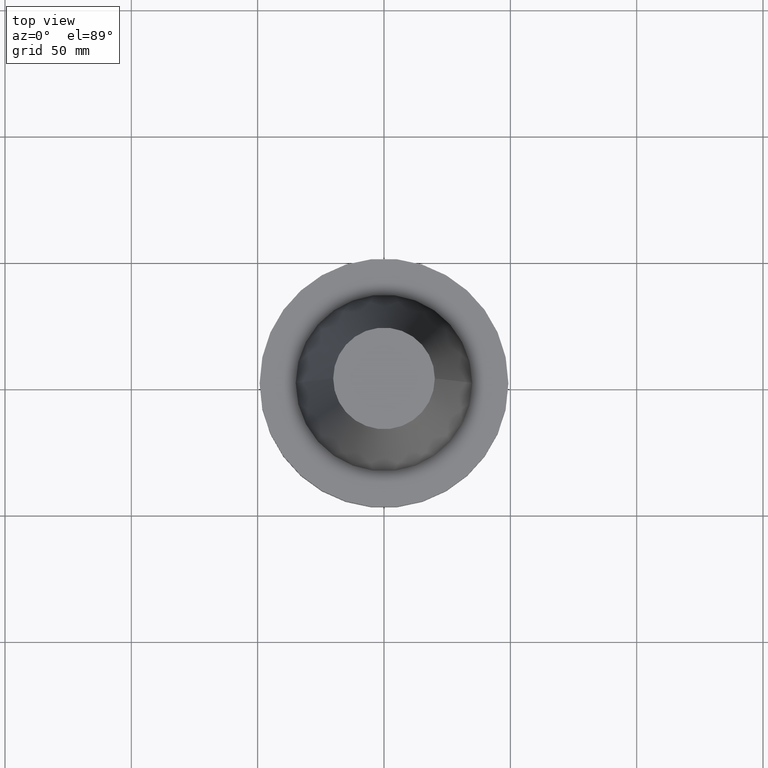
[diagram: clean part render]
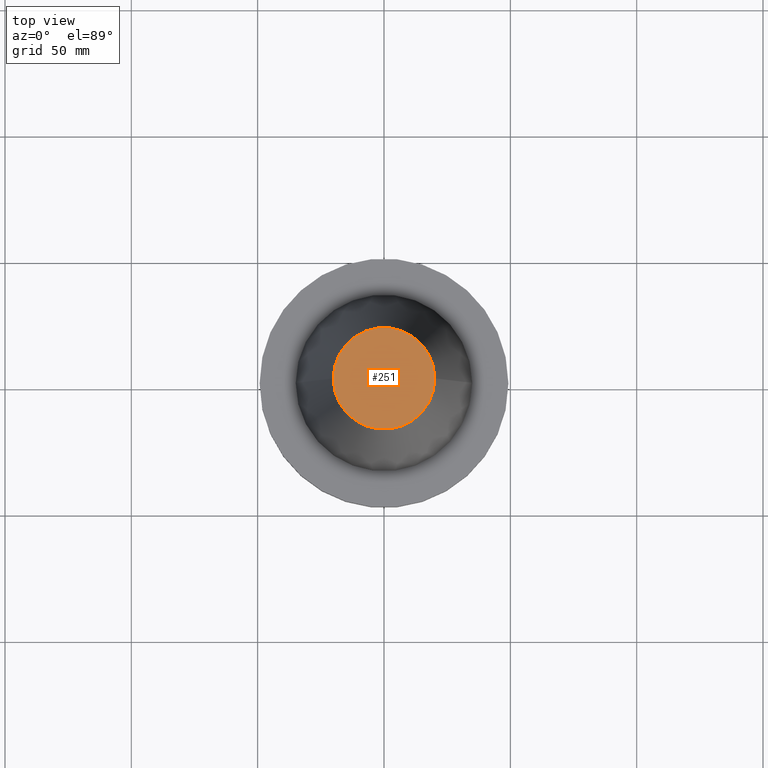
[diagram: same view with one face highlighted and labeled with its STEP entity id]
A machine part, top view. The second image highlights one B-rep face of the part: STEP entity #251.
In plain terms, the highlighted planar face has unit normal (0, 0, -1).
Its self-contained STEP definition (entity closure, byte-faithful):
#61 = CARTESIAN_POINT ( 'NONE',  ( 0.000000000000000000, 0.000000000000000000, 101.5999999999999801 ) ) ;
#99 = AXIS2_PLACEMENT_3D ( 'NONE', #573, #512, #697 ) ;
#149 = AXIS2_PLACEMENT_3D ( 'NONE', #61, #255, #517 ) ;
#160 = EDGE_LOOP ( 'NONE', ( #629, #319 ) ) ;
#251 = ADVANCED_FACE ( 'NONE', ( #780 ), #404, .F. ) ;
#255 = DIRECTION ( 'NONE',  ( -0.000000000000000000, -0.000000000000000000, 1.000000000000000000 ) ) ;
#279 = AXIS2_PLACEMENT_3D ( 'NONE', #523, #663, #462 ) ;
#308 = CARTESIAN_POINT ( 'NONE',  ( -20.10819343178871321, 0.000000000000000000, 101.5999999999999801 ) ) ;
#319 = ORIENTED_EDGE ( 'NONE', *, *, #716, .T. ) ;
#343 = VERTEX_POINT ( 'NONE', #489 ) ;
#404 = PLANE ( 'NONE',  #279 ) ;
#444 = CIRCLE ( 'NONE', #149, 20.10819343178871321 ) ;
#462 = DIRECTION ( 'NONE',  ( -1.000000000000000000, 0.000000000000000000, -0.000000000000000000 ) ) ;
#489 = CARTESIAN_POINT ( 'NONE',  ( 20.10819343178871321, 3.369811209154858606E-15, 101.5999999999999801 ) ) ;
#512 = DIRECTION ( 'NONE',  ( -0.000000000000000000, -0.000000000000000000, 1.000000000000000000 ) ) ;
#517 = DIRECTION ( 'NONE',  ( 1.000000000000000000, 0.000000000000000000, 0.000000000000000000 ) ) ;
#523 = CARTESIAN_POINT ( 'NONE',  ( 0.000000000000000000, 20.10819343178871321, 101.5999999999999943 ) ) ;
#557 = VERTEX_POINT ( 'NONE', #308 ) ;
#565 = EDGE_CURVE ( 'NONE', #557, #343, #735, .T. ) ;
#573 = CARTESIAN_POINT ( 'NONE',  ( 0.000000000000000000, 0.000000000000000000, 101.5999999999999801 ) ) ;
#629 = ORIENTED_EDGE ( 'NONE', *, *, #565, .T. ) ;
#663 = DIRECTION ( 'NONE',  ( 0.000000000000000000, 0.000000000000000000, -1.000000000000000000 ) ) ;
#697 = DIRECTION ( 'NONE',  ( 1.000000000000000000, 0.000000000000000000, 0.000000000000000000 ) ) ;
#716 = EDGE_CURVE ( 'NONE', #343, #557, #444, .T. ) ;
#735 = CIRCLE ( 'NONE', #99, 20.10819343178871321 ) ;
#780 = FACE_OUTER_BOUND ( 'NONE', #160, .T. ) ;